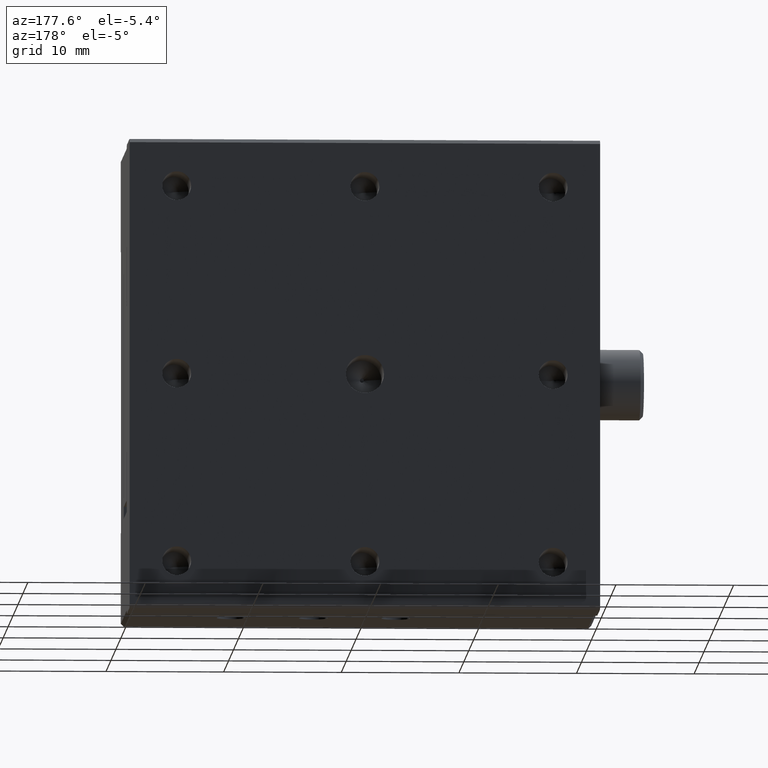
[diagram: clean part render]
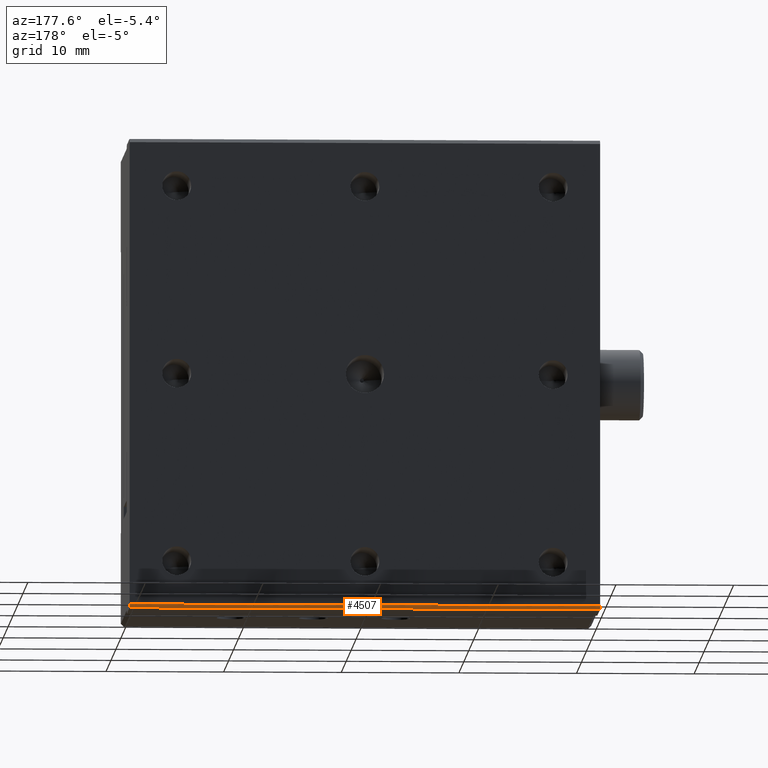
[diagram: same view with one face highlighted and labeled with its STEP entity id]
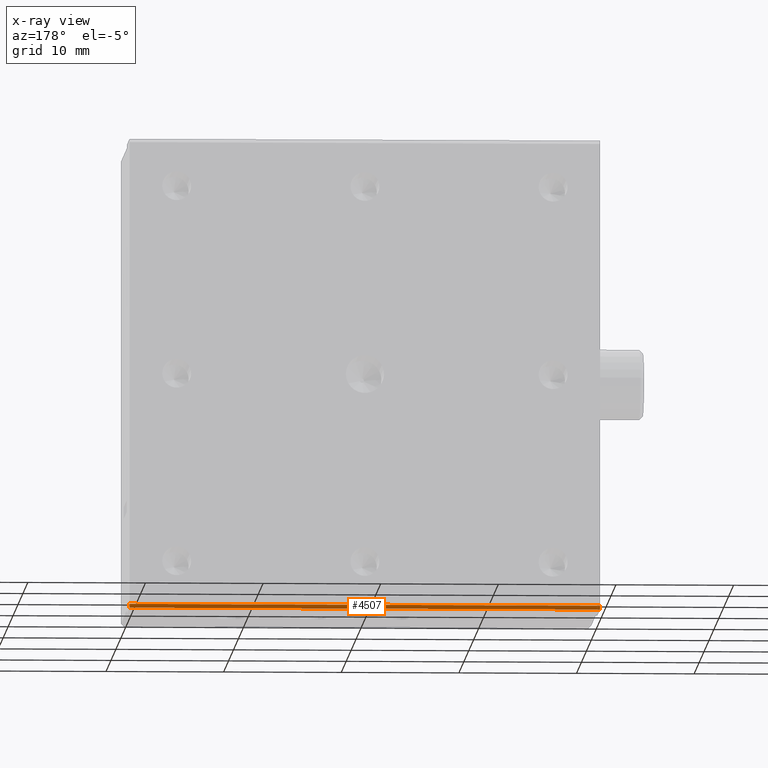
[diagram: x-ray of the same camera — body ghosted, the highlighted face saturated]
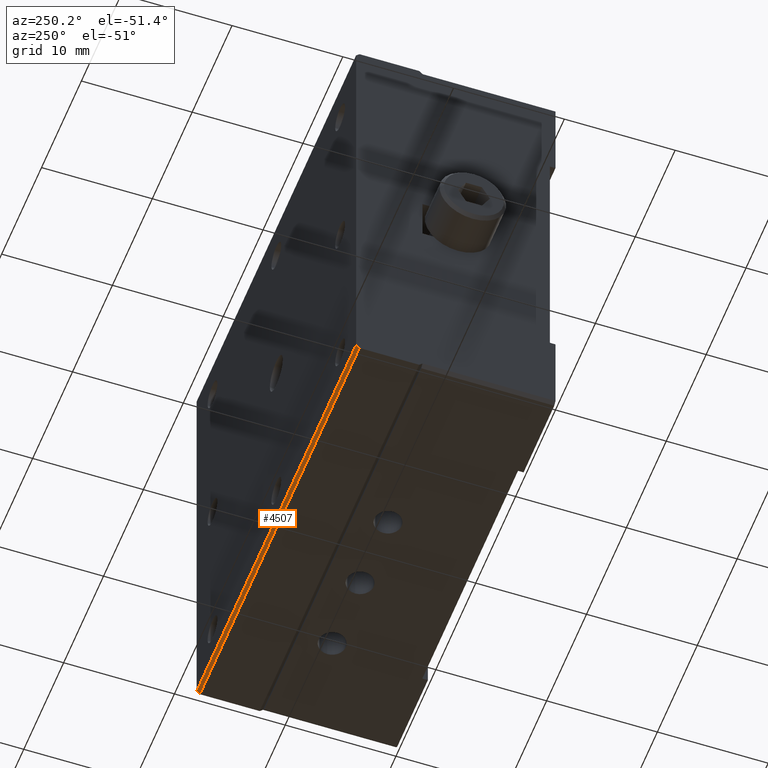
[diagram: same view with one face highlighted and labeled with its STEP entity id]
A machine part, auxiliary view. The second image highlights one B-rep face of the part: STEP entity #4507.
The next image is the same camera in x-ray: the body ghosted, the highlighted face saturated — about 0% of this face is hidden behind the body in this view.
A second angle (auxiliary view) of the same face is appended — the face is thin or edge-on in the first view.
In plain terms, the highlighted planar face has unit normal (0, 0.7071, -0.7071).
Its self-contained STEP definition (entity closure, byte-faithful):
#136 = FACE_OUTER_BOUND ( 'NONE', #3822, .T. ) ;
#216 = CARTESIAN_POINT ( 'NONE',  ( 0.000000000000000000, 17.70000000000004547, 2.522830035156522240E-15 ) ) ;
#257 = VECTOR ( 'NONE', #3376, 1000.000000000000000 ) ;
#432 = DIRECTION ( 'NONE',  ( -0.000000000000000000, -0.7071067811865170416, -0.7071067811865779928 ) ) ;
#455 = CARTESIAN_POINT ( 'NONE',  ( 40.00000000000000000, 18.00000000000002842, 0.3000000000000109801 ) ) ;
#677 = VECTOR ( 'NONE', #943, 1000.000000000000000 ) ;
#686 = DIRECTION ( 'NONE',  ( -1.000000000000000000, 0.000000000000000000, 0.000000000000000000 ) ) ;
#943 = DIRECTION ( 'NONE',  ( -0.000000000000000000, -0.7071067811865170416, -0.7071067811865779928 ) ) ;
#1167 = ORIENTED_EDGE ( 'NONE', *, *, #5108, .T. ) ;
#1372 = VECTOR ( 'NONE', #686, 1000.000000000000000 ) ;
#1460 = CARTESIAN_POINT ( 'NONE',  ( 0.000000000000000000, 18.00000000000002842, 0.3000000000000090372 ) ) ;
#1465 = AXIS2_PLACEMENT_3D ( 'NONE', #455, #2489, #432 ) ;
#1529 = VERTEX_POINT ( 'NONE', #216 ) ;
#2013 = EDGE_CURVE ( 'NONE', #3066, #2070, #3670, .T. ) ;
#2070 = VERTEX_POINT ( 'NONE', #4583 ) ;
#2292 = CARTESIAN_POINT ( 'NONE',  ( 40.00000000000000000, 17.70000000000004903, 2.168404344971008868E-15 ) ) ;
#2489 = DIRECTION ( 'NONE',  ( 0.000000000000000000, 0.7071067811865779928, -0.7071067811865170416 ) ) ;
#2490 = EDGE_CURVE ( 'NONE', #3066, #2529, #5060, .T. ) ;
#2529 = VERTEX_POINT ( 'NONE', #1460 ) ;
#2579 = LINE ( 'NONE', #2292, #1372 ) ;
#2705 = CARTESIAN_POINT ( 'NONE',  ( 40.00000000000000000, 18.00000000000002842, 0.3000000000000085931 ) ) ;
#2926 = CARTESIAN_POINT ( 'NONE',  ( 40.00000000000000000, 18.00000000000002842, 0.3000000000000109801 ) ) ;
#3056 = DIRECTION ( 'NONE',  ( 0.000000000000000000, 0.7071067811865170416, 0.7071067811865779928 ) ) ;
#3066 = VERTEX_POINT ( 'NONE', #3807 ) ;
#3110 = VECTOR ( 'NONE', #3056, 1000.000000000000000 ) ;
#3376 = DIRECTION ( 'NONE',  ( -1.000000000000000000, 0.000000000000000000, 0.000000000000000000 ) ) ;
#3670 = LINE ( 'NONE', #2926, #677 ) ;
#3762 = ORIENTED_EDGE ( 'NONE', *, *, #2013, .T. ) ;
#3807 = CARTESIAN_POINT ( 'NONE',  ( 40.00000000000000000, 18.00000000000002842, 0.3000000000000090372 ) ) ;
#3822 = EDGE_LOOP ( 'NONE', ( #3762, #5112, #1167, #4144 ) ) ;
#4004 = EDGE_CURVE ( 'NONE', #2070, #1529, #2579, .T. ) ;
#4144 = ORIENTED_EDGE ( 'NONE', *, *, #2490, .F. ) ;
#4175 = CARTESIAN_POINT ( 'NONE',  ( 0.000000000000000000, 18.00000000000002842, 0.3000000000000109801 ) ) ;
#4443 = PLANE ( 'NONE',  #1465 ) ;
#4507 = ADVANCED_FACE ( 'NONE', ( #136 ), #4443, .T. ) ;
#4583 = CARTESIAN_POINT ( 'NONE',  ( 40.00000000000000000, 17.70000000000004547, 2.536382562312591045E-15 ) ) ;
#4977 = LINE ( 'NONE', #4175, #3110 ) ;
#5060 = LINE ( 'NONE', #2705, #257 ) ;
#5108 = EDGE_CURVE ( 'NONE', #1529, #2529, #4977, .T. ) ;
#5112 = ORIENTED_EDGE ( 'NONE', *, *, #4004, .T. ) ;